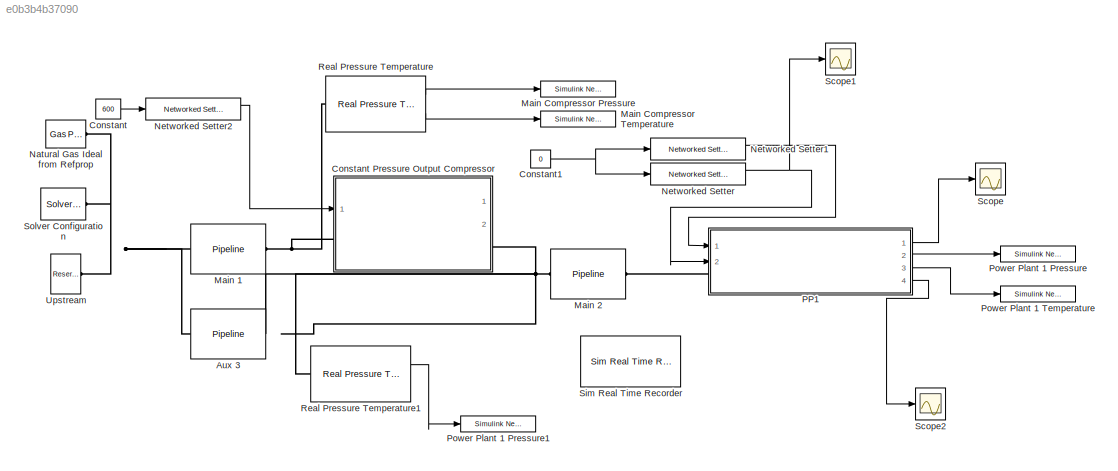
MODEL slx_e0b3b4b37090
KIND model
CONFIG AbsTol = auto
CONFIG EnableMultiTasking = off
CONFIG FixedStep = auto
CONFIG MaxStep = auto
CONFIG MinStep = auto
CONFIG RelTol = 1e-3
CONFIG SampleTimeConstraint = Unconstrained
CONFIG Solver = VariableStepAuto
CONFIG SolverName = VariableStepAuto
CONFIG StartTime = 0.0
CONFIG StopTime = 604800
BLOCK [Reference] Aux 3  REF=gasLibrary/Pipeline
  Ports = [0, 0, 0, 0, 0, 1, 1]
  SourceBlock = gasLibrary/Pipeline
BLOCK [Constant] Constant
  Value = 600
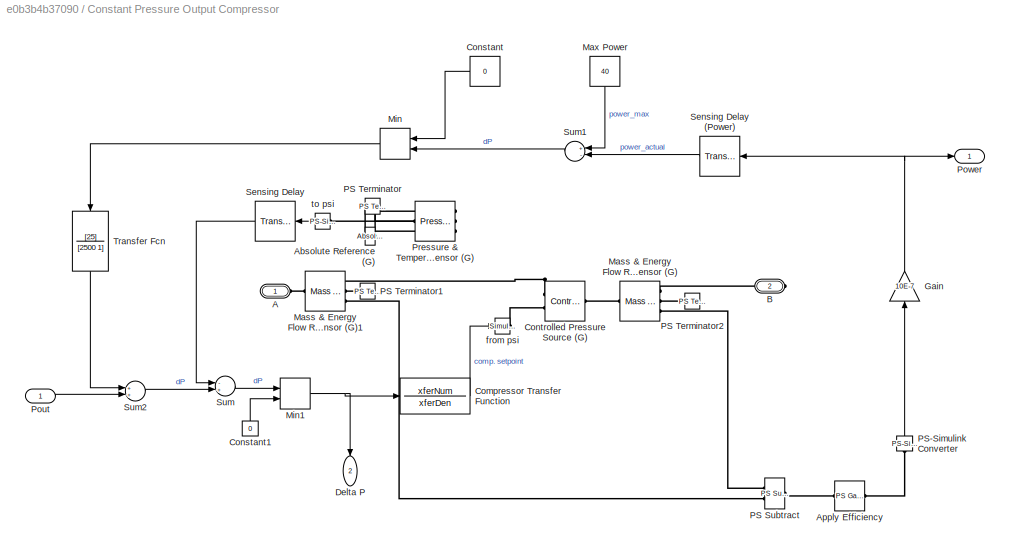
BLOCK [SubSystem] Constant Pressure Output Compressor
  AncestorBlock = gasLibrary/Constant Pressure\nOutput Compressor
  Ports = [1, 2, 0, 0, 0, 1, 1]
  RequestExecContextInheritance = off
BLOCK [PMIOPort] Constant Pressure Output Compressor/A
  Side = Left
BLOCK [Reference] Constant Pressure Output Compressor/Absolute Reference (G)  REF=fl_lib/Gas/Elements/Absolute Reference
(G)
  Ports = [0, 0, 0, 0, 0, 1]
  SourceBlock = fl_lib/Gas/Elements/Absolute Reference\n(G)
  SourceProductBaseCode = SS
  SourceProductName = Simscape
  SourceType = Absolute Reference\n(G)
BLOCK [Reference] Constant Pressure Output Compressor/Apply Efficiency  REF=fl_lib/Physical Signals/Functions/PS Gain
  Ports = [0, 0, 0, 0, 0, 1, 1]
  SourceBlock = fl_lib/Physical Signals/Functions/PS Gain
  SourceProductBaseCode = SS
  SourceProductName = Simscape
  SourceType = PS Gain
BLOCK [PMIOPort] Constant Pressure Output Compressor/B
  Port = 2
  Side = Right
BLOCK [TransferFcn] Constant Pressure Output Compressor/Compressor Transfer Function
  Denominator = xferDen
  Numerator = xferNum
BLOCK [Constant] Constant Pressure Output Compressor/Constant
  Value = 0
BLOCK [Constant] Constant Pressure Output Compressor/Constant1
  Value = 0
BLOCK [Reference] Constant Pressure Output Compressor/Controlled Pressure Source (G)  REF=fl_lib/Gas/Sources/Controlled Pressure
Source (G)
  Ports = [0, 0, 0, 0, 0, 2, 1]
  SourceBlock = fl_lib/Gas/Sources/Controlled Pressure\nSource (G)
  SourceProductBaseCode = SS
  SourceProductName = Simscape
  SourceType = Controlled Pressure\nSource (G)
BLOCK [Outport] Constant Pressure Output Compressor/Delta P
  IconDisplay = Port number
  Port = 2
BLOCK [Gain] Constant Pressure Output Compressor/Gain
  Gain = 10E-7
  OutDataTypeStr = Inherit: Inherit via internal rule
  ParamDataTypeStr = Inherit: Inherit via internal rule
  SaturateOnIntegerOverflow = off
BLOCK [Reference] Constant Pressure Output Compressor/Mass & Energy Flow Rate Sensor (G)  REF=fl_lib/Gas/Sensors/Mass & Energy Flow
Rate Sensor (G)
  Ports = [0, 0, 0, 0, 0, 1, 3]
  SourceBlock = fl_lib/Gas/Sensors/Mass & Energy Flow\nRate Sensor (G)
  SourceProductBaseCode = SS
  SourceProductName = Simscape
  SourceType = Mass & Energy Flow\nRate Sensor (G)
BLOCK [Reference] Constant Pressure Output Compressor/Mass & Energy Flow Rate Sensor (G)1  REF=fl_lib/Gas/Sensors/Mass & Energy Flow
Rate Sensor (G)
  Ports = [0, 0, 0, 0, 0, 1, 3]
  SourceBlock = fl_lib/Gas/Sensors/Mass & Energy Flow\nRate Sensor (G)
  SourceProductBaseCode = SS
  SourceProductName = Simscape
  SourceType = Mass & Energy Flow\nRate Sensor (G)
BLOCK [Constant] Constant Pressure Output Compressor/Max Power
  Value = 40
BLOCK [MinMax] Constant Pressure Output Compressor/Min
  InputSameDT = off
  Inputs = 2
  Ports = [2, 1]
  SaturateOnIntegerOverflow = off
BLOCK [MinMax] Constant Pressure Output Compressor/Min1
  Function = max
  InputSameDT = off
  Inputs = 2
  Ports = [2, 1]
  SaturateOnIntegerOverflow = off
BLOCK [Reference] Constant Pressure Output Compressor/PS Subtract  REF=fl_lib/Physical Signals/Functions/PS Subtract
  Ports = [0, 0, 0, 0, 0, 2, 1]
  SourceBlock = fl_lib/Physical Signals/Functions/PS Subtract
  SourceProductBaseCode = SS
  SourceProductName = Simscape
  SourceType = PS Subtract
BLOCK [Reference] Constant Pressure Output Compressor/PS Terminator  REF=fl_lib/Physical Signals/Sinks/PS Terminator
  Ports = [0, 0, 0, 0, 0, 1]
  SourceBlock = fl_lib/Physical Signals/Sinks/PS Terminator
  SourceProductBaseCode = SS
  SourceProductName = Simscape
  SourceType = PS Terminator
BLOCK [Reference] Constant Pressure Output Compressor/PS Terminator1  REF=fl_lib/Physical Signals/Sinks/PS Terminator
  Ports = [0, 0, 0, 0, 0, 1]
  SourceBlock = fl_lib/Physical Signals/Sinks/PS Terminator
  SourceProductBaseCode = SS
  SourceProductName = Simscape
  SourceType = PS Terminator
BLOCK [Reference] Constant Pressure Output Compressor/PS Terminator2  REF=fl_lib/Physical Signals/Sinks/PS Terminator
  Ports = [0, 0, 0, 0, 0, 1]
  SourceBlock = fl_lib/Physical Signals/Sinks/PS Terminator
  SourceProductBaseCode = SS
  SourceProductName = Simscape
  SourceType = PS Terminator
BLOCK [Reference] Constant Pressure Output Compressor/PS-Simulink Converter  REF=nesl_utility/PS-Simulink
Converter
  Ports = [0, 1, 0, 0, 0, 1]
  SourceBlock = nesl_utility/PS-Simulink\nConverter
  SourceProductBaseCode = SS
  SourceProductName = Simscape
  SourceType = PS-Simulink\nConverter
BLOCK [Inport] Constant Pressure Output Compressor/Pout
  IconDisplay = Port number
BLOCK [Outport] Constant Pressure Output Compressor/Power
  IconDisplay = Port number
BLOCK [Reference] Constant Pressure Output Compressor/Pressure & Temperature Sensor (G)  REF=fl_lib/Gas/Sensors/Pressure &
Temperature Sensor
(G)
  Ports = [0, 0, 0, 0, 0, 1, 3]
  SourceBlock = fl_lib/Gas/Sensors/Pressure &\nTemperature Sensor\n(G)
  SourceProductBaseCode = SS
  SourceProductName = Simscape
  SourceType = Pressure &\nTemperature Sensor\n(G)
BLOCK [TransportDelay] Constant Pressure Output Compressor/Sensing Delay
  DelayTime = delaySeconds
  Ports = [1, 1]
  TransDelayFeedthrough = on
BLOCK [TransportDelay] Constant Pressure Output Compressor/Sensing Delay (Power)
  DelayTime = delaySeconds
  Ports = [1, 1]
  TransDelayFeedthrough = on
BLOCK [Sum] Constant Pressure Output Compressor/Sum
  InputSameDT = off
  Inputs = -+
  OutDataTypeStr = Inherit: Inherit via internal rule
  Ports = [2, 1]
  SaturateOnIntegerOverflow = off
BLOCK [Sum] Constant Pressure Output Compressor/Sum1
  InputSameDT = off
  Inputs = +-
  OutDataTypeStr = Inherit: Inherit via internal rule
  Ports = [2, 1]
  SaturateOnIntegerOverflow = off
BLOCK [Sum] Constant Pressure Output Compressor/Sum2
  InputSameDT = off
  OutDataTypeStr = Inherit: Inherit via internal rule
  Ports = [2, 1]
  SaturateOnIntegerOverflow = off
BLOCK [TransferFcn] Constant Pressure Output Compressor/Transfer Fcn
  Denominator = [2500 1]
  Numerator = [25]
BLOCK [Reference] Constant Pressure Output Compressor/from psi  REF=nesl_utility/Simulink-PS
Converter
  Ports = [1, 0, 0, 0, 0, 0, 1]
  SourceBlock = nesl_utility/Simulink-PS\nConverter
  SourceProductBaseCode = SS
  SourceProductName = Simscape
  SourceType = Simulink-PS\nConverter
BLOCK [Reference] Constant Pressure Output Compressor/to psi  REF=nesl_utility/PS-Simulink
Converter
  Ports = [0, 1, 0, 0, 0, 1]
  SourceBlock = nesl_utility/PS-Simulink\nConverter
  SourceProductBaseCode = SS
  SourceProductName = Simscape
  SourceType = PS-Simulink\nConverter
BLOCK [Constant] Constant1
  Value = 0
BLOCK [Reference] Main 1  REF=gasLibrary/Pipeline
  Ports = [0, 0, 0, 0, 0, 1, 1]
  SourceBlock = gasLibrary/Pipeline
BLOCK [Reference] Main 2  REF=gasLibrary/Pipeline
  Ports = [0, 0, 0, 0, 0, 1, 1]
  SourceBlock = gasLibrary/Pipeline
BLOCK [Reference] Main Compressor Pressure  REF=gasLibrary/Simulink Network Sensor
  Ports = [1]
  SourceBlock = gasLibrary/Simulink Network Sensor
BLOCK [Reference] Main Compressor Temperature  REF=gasLibrary/Simulink Network Sensor
  Ports = [1]
  SourceBlock = gasLibrary/Simulink Network Sensor
BLOCK [Reference] Natural Gas Ideal from Refprop  REF=fl_lib/Gas/Utilities/Gas Properties (G)
  Ports = [0, 0, 0, 0, 0, 0, 1]
  SourceBlock = fl_lib/Gas/Utilities/Gas Properties (G)
  SourceProductName = Foundation Library
  SourceType = Gas Properties (G)
BLOCK [Reference] Networked Setter  REF=gasLibrary/Networked Setter
  Ports = [1, 2]
  SourceBlock = gasLibrary/Networked Setter
BLOCK [Reference] Networked Setter1  REF=gasLibrary/Networked Setter
  Ports = [1, 2]
  SourceBlock = gasLibrary/Networked Setter
BLOCK [Reference] Networked Setter2  REF=gasLibrary/Networked Setter
  Ports = [1, 2]
  SourceBlock = gasLibrary/Networked Setter
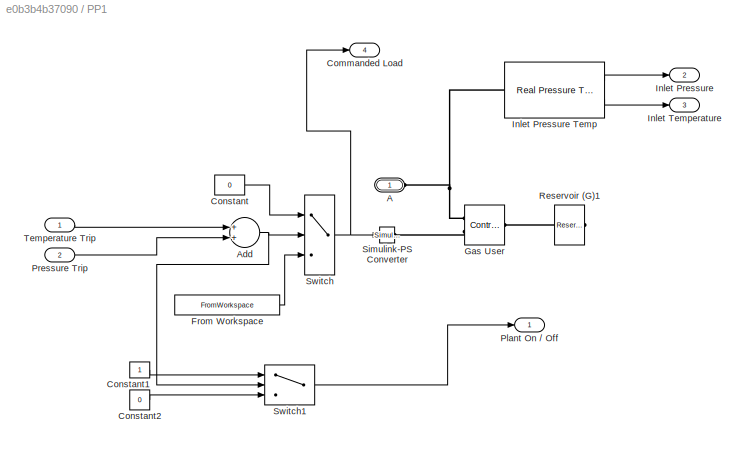
BLOCK [SubSystem] PP1
  AncestorBlock = gasLibrary/Load
  Ports = [2, 4, 0, 0, 0, 1]
  RequestExecContextInheritance = off
BLOCK [PMIOPort] PP1/A
  Side = Left
BLOCK [Sum] PP1/Add
  InputSameDT = off
  OutDataTypeStr = Inherit: Inherit via internal rule
  Ports = [2, 1]
  SaturateOnIntegerOverflow = off
BLOCK [Outport] PP1/Commanded Load
  IconDisplay = Port number
  Port = 4
BLOCK [Constant] PP1/Constant
  Value = 0
BLOCK [Constant] PP1/Constant1
BLOCK [Constant] PP1/Constant2
  Value = 0
BLOCK [FromWorkspace] PP1/From Workspace
  OutputAfterFinalValue = Holding final value
  SampleTime = 0
  VariableName = [gasTime gasLoad]
  ZeroCross = on
BLOCK [Reference] PP1/Gas User  REF=fl_lib/Gas/Sources/Controlled Mass Flow
Rate Source (G)
  Ports = [0, 0, 0, 0, 0, 2, 1]
  SourceBlock = fl_lib/Gas/Sources/Controlled Mass Flow\nRate Source (G)
  SourceProductBaseCode = SS
  SourceProductName = Simscape
  SourceType = Controlled Mass Flow\nRate Source (G)
BLOCK [Outport] PP1/Inlet Pressure
  IconDisplay = Port number
  Port = 2
BLOCK [Reference] PP1/Inlet Pressure Temp  REF=gasLibrary/Real Pressure Temperature
  Ports = [0, 2, 0, 0, 0, 1]
  SourceBlock = gasLibrary/Real Pressure Temperature
  SourceType = SubSystem
BLOCK [Outport] PP1/Inlet Temperature
  IconDisplay = Port number
  Port = 3
BLOCK [Outport] PP1/Plant On // Off
  IconDisplay = Port number
BLOCK [Inport] PP1/Pressure Trip
  IconDisplay = Port number
  Port = 2
BLOCK [Reference] PP1/Reservoir (G)1  REF=fl_lib/Gas/Elements/Reservoir (G)
  Ports = [0, 0, 0, 0, 0, 1]
  SourceBlock = fl_lib/Gas/Elements/Reservoir (G)
  SourceProductName = Foundation Library
  SourceType = Reservoir (G)
BLOCK [Reference] PP1/Simulink-PS Converter  REF=nesl_utility/Simulink-PS
Converter
  Ports = [1, 0, 0, 0, 0, 0, 1]
  SourceBlock = nesl_utility/Simulink-PS\nConverter
  SourceProductBaseCode = SS
  SourceProductName = Simscape
  SourceType = Simulink-PS\nConverter
BLOCK [Switch] PP1/Switch
  Criteria = u2 > Threshold
  InputSameDT = off
  SaturateOnIntegerOverflow = off
  Threshold = 0.5
BLOCK [Switch] PP1/Switch1
  Criteria = u2 > Threshold
  InputSameDT = off
  SaturateOnIntegerOverflow = off
BLOCK [Inport] PP1/Temperature Trip
  IconDisplay = Port number
BLOCK [Reference] Power Plant 1 Pressure  REF=gasLibrary/Simulink Network Sensor
  Ports = [1]
  SourceBlock = gasLibrary/Simulink Network Sensor
BLOCK [Reference] Power Plant 1 Pressure1  REF=gasLibrary/Simulink Network Sensor
  Ports = [1]
  SourceBlock = gasLibrary/Simulink Network Sensor
BLOCK [Reference] Power Plant 1 Temperature  REF=gasLibrary/Simulink Network Sensor
  Ports = [1]
  SourceBlock = gasLibrary/Simulink Network Sensor
BLOCK [Reference] Real Pressure Temperature  REF=gasLibrary/Real Pressure Temperature
  Ports = [0, 2, 0, 0, 0, 1]
  SourceBlock = gasLibrary/Real Pressure Temperature
  SourceType = SubSystem
BLOCK [Reference] Real Pressure Temperature1  REF=gasLibrary/Real Pressure Temperature
  Ports = [0, 2, 0, 0, 0, 1]
  SourceBlock = gasLibrary/Real Pressure Temperature
  SourceType = SubSystem
BLOCK [Scope] Scope
  Floating = off
  NumInputPorts = 1
  Ports = [1]
  ScopeSpecificationString = Simulink.scopes.TimeScopeBlockCfg('CurrentConfiguration', extmgr.ConfigurationSet(extmgr.Configuration('Core','General UI',true),extmgr.Configuration('Core','Source UI',true),extmgr.Configuration('Sources','WiredSimulink',true,'DataLoggingVariableName','ScopeData1'),extmgr.Configuration('Visuals','Time Domain',true,'SerializedDisplays',{struct('MinYLimReal','-0.125','MaxYLimReal','1.125','YLabelRe...<+1352ch>
BLOCK [Scope] Scope1
  Floating = off
  NumInputPorts = 1
  Ports = [1]
  ScopeSpecificationString = Simulink.scopes.TimeScopeBlockCfg('CurrentConfiguration', extmgr.ConfigurationSet(extmgr.Configuration('Core','General UI',true),extmgr.Configuration('Core','Source UI',true),extmgr.Configuration('Sources','WiredSimulink',true,'DataLoggingVariableName','ScopeData1'),extmgr.Configuration('Visuals','Time Domain',true,'SerializedDisplays',{struct('MinYLimReal','-0.125','MaxYLimReal','1.125','YLabelRe...<+1365ch>
BLOCK [Scope] Scope2
  Floating = off
  NumInputPorts = 1
  Ports = [1]
  ScopeSpecificationString = Simulink.scopes.TimeScopeBlockCfg('CurrentConfiguration', extmgr.ConfigurationSet(extmgr.Configuration('Core','General UI',true),extmgr.Configuration('Core','Source UI',true),extmgr.Configuration('Sources','WiredSimulink',true,'DataLoggingVariableName','ScopeData1'),extmgr.Configuration('Visuals','Time Domain',true,'SerializedDisplays',{struct('MinYLimReal','-10.00000','MaxYLimReal','90.00000','YL...<+1370ch>
BLOCK [Reference] Sim Real Time Recorder  REF=gasLibrary/Sim Real Time Recorder
  Ports = [0, 2]
  SourceBlock = gasLibrary/Sim Real Time Recorder
BLOCK [Reference] Solver Configuration  REF=nesl_utility/Solver
Configuration
  Ports = [0, 0, 0, 0, 0, 0, 1]
  SourceBlock = nesl_utility/Solver\nConfiguration
  SourceProductBaseCode = SS
  SourceProductName = Simscape
  SourceType = Solver\nConfiguration
BLOCK [Reference] Upstream  REF=fl_lib/Gas/Elements/Reservoir (G)
  Ports = [0, 0, 0, 0, 0, 1]
  SourceBlock = fl_lib/Gas/Elements/Reservoir (G)
  SourceProductName = Foundation Library
  SourceType = Reservoir (G)
NET Constant1:1 -> Networked Setter1:1, Networked Setter:1
LINE Constant:1 -> Networked Setter2:1
LINE Networked Setter1:1 -> PP1:1
LINE Networked Setter2:1 -> Constant Pressure Output Compressor:1
NET Networked Setter:1 -> PP1:2, Scope1:1
LINE PP1:1 -> Scope:1
LINE PP1:2 -> Power Plant 1 Pressure:1
LINE PP1:3 -> Power Plant 1 Temperature:1
LINE PP1:4 -> Scope2:1
LINE Real Pressure Temperature1:1 -> Power Plant 1 Pressure1:1
LINE Real Pressure Temperature:1 -> Main Compressor Pressure:1
LINE Real Pressure Temperature:2 -> Main Compressor Temperature:1
PNET net1: Aux 3:LConn1 -- Main 1:LConn1 -- Natural Gas Ideal from Refprop:RConn1 -- Solver Configuration:RConn1 -- Upstream:LConn1
PNET net2: Aux 3:RConn1 -- Constant Pressure Output Compressor:RConn1 -- Main 2:LConn1 -- Real Pressure Temperature1:LConn1
PNET net3: Constant Pressure Output Compressor:LConn1 -- Main 1:RConn1 -- Real Pressure Temperature:LConn1
PLINE Main 2:RConn1 -- PP1:LConn1
note: NET lines group one-source signal fan-out (src -> all destinations, sorted); 1:1 wires keep LINE; PNET lines group multi-terminal physical nets as a canonical sorted terminal list (undirected conserving connections); 2-terminal nets keep the pairwise PLINE form
